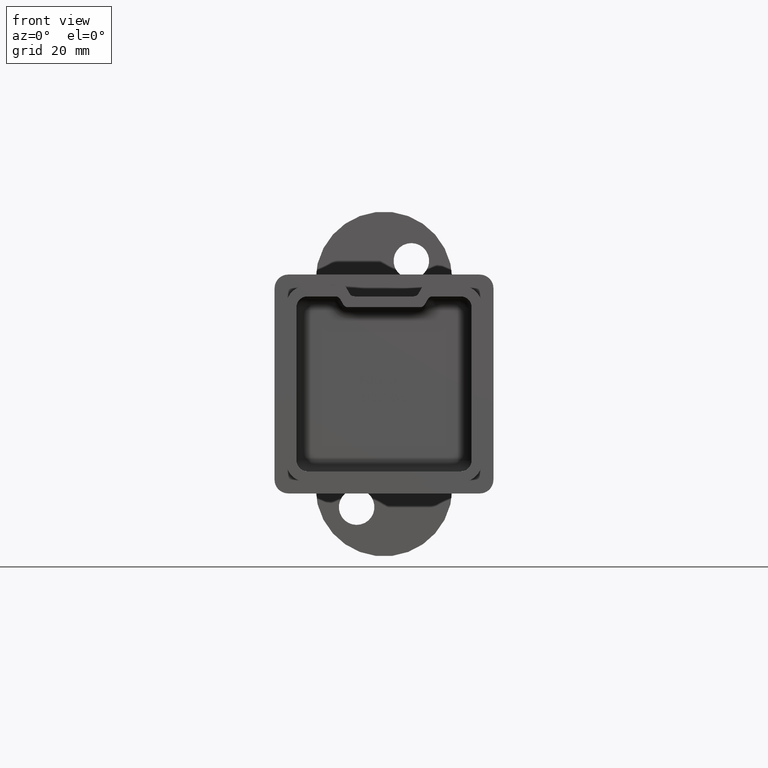
[diagram: clean part render]
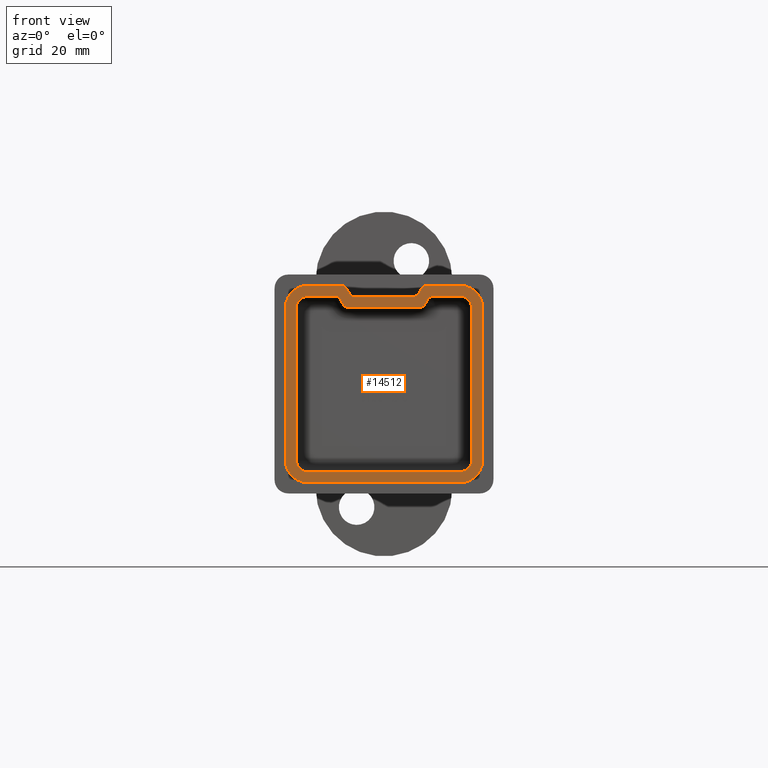
[diagram: same view with one face highlighted and labeled with its STEP entity id]
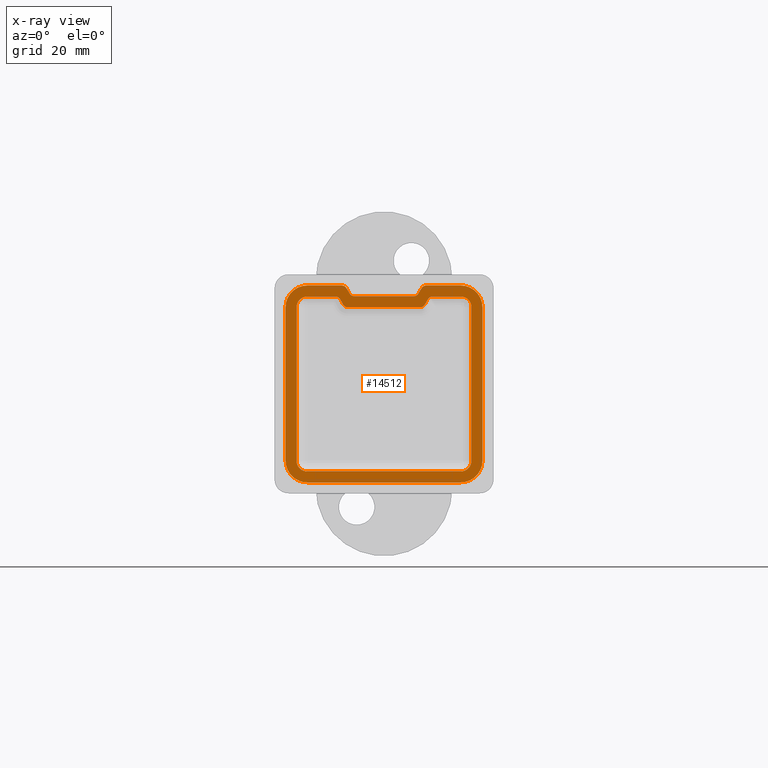
[diagram: x-ray of the same camera — body ghosted, the highlighted face saturated]
A machine part, front view. The second image highlights one B-rep face of the part: STEP entity #14512.
The next image is the same camera in x-ray: the body ghosted, the highlighted face saturated — about 0% of this face is hidden behind the body in this view.
In plain terms, the highlighted planar face has unit normal (0, -1, 0).
Its self-contained STEP definition (entity closure, byte-faithful):
#1 = LINE ( 'NONE', #11690, #9505 ) ;
#53 = DIRECTION ( 'NONE',  ( 0.000000000000000000, -1.000000000000000000, 0.000000000000000000 ) ) ;
#157 = DIRECTION ( 'NONE',  ( 0.000000000000000000, 0.000000000000000000, -1.000000000000000000 ) ) ;
#218 = DIRECTION ( 'NONE',  ( -0.000000000000000000, 1.000000000000000000, -0.000000000000000000 ) ) ;
#318 = DIRECTION ( 'NONE',  ( 0.000000000000000000, -1.000000000000000000, 0.000000000000000000 ) ) ;
#411 = LINE ( 'NONE', #4469, #12918 ) ;
#533 = VERTEX_POINT ( 'NONE', #12432 ) ;
#561 = ORIENTED_EDGE ( 'NONE', *, *, #6481, .T. ) ;
#753 = CARTESIAN_POINT ( 'NONE',  ( 13.99999999999999289, -30.00000000000000000, 16.00000000000000000 ) ) ;
#860 = EDGE_CURVE ( 'NONE', #11211, #6124, #6607, .T. ) ;
#867 = ORIENTED_EDGE ( 'NONE', *, *, #5024, .T. ) ;
#874 = CARTESIAN_POINT ( 'NONE',  ( 17.99999999999999645, -30.00000000000000000, 14.00000000000000178 ) ) ;
#896 = VERTEX_POINT ( 'NONE', #4999 ) ;
#965 = LINE ( 'NONE', #10046, #8767 ) ;
#966 = ORIENTED_EDGE ( 'NONE', *, *, #6809, .F. ) ;
#978 = DIRECTION ( 'NONE',  ( -0.000000000000000000, 1.000000000000000000, -0.000000000000000000 ) ) ;
#1004 = CARTESIAN_POINT ( 'NONE',  ( -8.886751345948120218, -30.00000000000000000, 15.99999999999999289 ) ) ;
#1165 = CARTESIAN_POINT ( 'NONE',  ( 17.99999999999999645, -30.00000000000000000, -13.99999999999998401 ) ) ;
#1185 = DIRECTION ( 'NONE',  ( -0.000000000000000000, 1.000000000000000000, -0.000000000000000000 ) ) ;
#1228 = CARTESIAN_POINT ( 'NONE',  ( 6.866025403784421499, -30.00000000000000000, 17.49999999999999289 ) ) ;
#1238 = LINE ( 'NONE', #8439, #11112 ) ;
#1295 = CARTESIAN_POINT ( 'NONE',  ( -16.00000000000000000, -30.00000000000000000, -1.734723475976807489E-15 ) ) ;
#1332 = VERTEX_POINT ( 'NONE', #6960 ) ;
#1475 = CARTESIAN_POINT ( 'NONE',  ( 13.99999999999999289, -30.00000000000000000, -13.99999999999999467 ) ) ;
#1579 = CIRCLE ( 'NONE', #6874, 2.000000000000001776 ) ;
#1602 = EDGE_LOOP ( 'NONE', ( #1619, #867, #15239, #2544, #2996, #15289, #5046, #10586, #6833, #14283, #10157, #11278, #6517, #561, #11322, #14727 ) ) ;
#1615 = CARTESIAN_POINT ( 'NONE',  ( 8.886751345948125547, -30.00000000000000000, 16.00000000000000000 ) ) ;
#1619 = ORIENTED_EDGE ( 'NONE', *, *, #8151, .F. ) ;
#1811 = DIRECTION ( 'NONE',  ( -1.000000000000000000, 0.000000000000000000, 0.000000000000000000 ) ) ;
#1818 = EDGE_CURVE ( 'NONE', #2696, #1332, #6608, .T. ) ;
#1867 = CARTESIAN_POINT ( 'NONE',  ( 13.99999999999999112, -30.00000000000000000, 18.00000000000000355 ) ) ;
#1897 = ORIENTED_EDGE ( 'NONE', *, *, #7211, .F. ) ;
#1961 = EDGE_CURVE ( 'NONE', #10136, #3402, #3548, .T. ) ;
#2008 = DIRECTION ( 'NONE',  ( 0.000000000000000000, 0.000000000000000000, -1.000000000000000000 ) ) ;
#2187 = PLANE ( 'NONE',  #5766 ) ;
#2238 = DIRECTION ( 'NONE',  ( 0.000000000000000000, 0.000000000000000000, -1.000000000000000000 ) ) ;
#2321 = VERTEX_POINT ( 'NONE', #874 ) ;
#2343 = AXIS2_PLACEMENT_3D ( 'NONE', #3380, #8073, #2008 ) ;
#2348 = DIRECTION ( 'NONE',  ( -1.000000000000000000, -0.000000000000000000, -1.927470528863119049E-16 ) ) ;
#2506 = VECTOR ( 'NONE', #12104, 1000.000000000000000 ) ;
#2544 = ORIENTED_EDGE ( 'NONE', *, *, #9512, .T. ) ;
#2581 = CARTESIAN_POINT ( 'NONE',  ( -14.00000000000000178, -30.00000000000000000, -14.00000000000000178 ) ) ;
#2663 = CARTESIAN_POINT ( 'NONE',  ( 15.99999999999999289, -30.00000000000000000, 14.00000000000000000 ) ) ;
#2696 = VERTEX_POINT ( 'NONE', #13261 ) ;
#2816 = ORIENTED_EDGE ( 'NONE', *, *, #9931, .F. ) ;
#2853 = VERTEX_POINT ( 'NONE', #7755 ) ;
#2905 = CARTESIAN_POINT ( 'NONE',  ( -5.422649730810372048, -30.00000000000000000, 15.99999999999999289 ) ) ;
#2989 = CIRCLE ( 'NONE', #12610, 2.000000000000000000 ) ;
#2996 = ORIENTED_EDGE ( 'NONE', *, *, #10638, .T. ) ;
#3087 = CARTESIAN_POINT ( 'NONE',  ( -16.00000000000000000, -30.00000000000000000, 13.99999999999999289 ) ) ;
#3207 = ORIENTED_EDGE ( 'NONE', *, *, #14833, .T. ) ;
#3241 = CARTESIAN_POINT ( 'NONE',  ( -14.00000000000000178, -30.00000000000000000, -18.00000000000000355 ) ) ;
#3262 = CARTESIAN_POINT ( 'NONE',  ( 0.000000000000000000, -30.00000000000000000, 15.99999999999999289 ) ) ;
#3349 = EDGE_CURVE ( 'NONE', #4758, #14671, #2989, .T. ) ;
#3380 = CARTESIAN_POINT ( 'NONE',  ( -5.422649730810372048, -30.00000000000000000, 16.99999999999999289 ) ) ;
#3402 = VERTEX_POINT ( 'NONE', #12300 ) ;
#3403 = LINE ( 'NONE', #4636, #13544 ) ;
#3548 = CIRCLE ( 'NONE', #2343, 1.000000000000000888 ) ;
#3627 = DIRECTION ( 'NONE',  ( 0.000000000000000000, -1.000000000000000000, 0.000000000000000000 ) ) ;
#3653 = LINE ( 'NONE', #11769, #5005 ) ;
#3663 = DIRECTION ( 'NONE',  ( 0.000000000000000000, -1.000000000000000000, 0.000000000000000000 ) ) ;
#3791 = VERTEX_POINT ( 'NONE', #15059 ) ;
#3866 = DIRECTION ( 'NONE',  ( 0.000000000000000000, 0.000000000000000000, -1.000000000000000000 ) ) ;
#3888 = DIRECTION ( 'NONE',  ( 1.734723475976805517E-15, 0.000000000000000000, -1.000000000000000000 ) ) ;
#3915 = DIRECTION ( 'NONE',  ( 0.000000000000000000, 0.000000000000000000, -1.000000000000000000 ) ) ;
#4039 = EDGE_CURVE ( 'NONE', #7659, #533, #14348, .T. ) ;
#4190 = ORIENTED_EDGE ( 'NONE', *, *, #12894, .T. ) ;
#4301 = VERTEX_POINT ( 'NONE', #5781 ) ;
#4410 = VERTEX_POINT ( 'NONE', #5927 ) ;
#4460 = CIRCLE ( 'NONE', #12320, 4.000000000000000000 ) ;
#4468 = CARTESIAN_POINT ( 'NONE',  ( -6.577350269189625287, -30.00000000000000000, 13.99999999999998934 ) ) ;
#4469 = CARTESIAN_POINT ( 'NONE',  ( -18.00000000000000355, -30.00000000000000000, 17.99999999999999645 ) ) ;
#4480 = DIRECTION ( 'NONE',  ( 0.000000000000000000, -1.000000000000000000, 0.000000000000000000 ) ) ;
#4567 = EDGE_LOOP ( 'NONE', ( #2816, #14657, #966, #5464, #12903, #6265, #10973, #4910, #6391, #3207, #1897, #7613, #14182, #4190, #5632, #12950 ) ) ;
#4613 = CIRCLE ( 'NONE', #5457, 4.000000000000000000 ) ;
#4635 = CARTESIAN_POINT ( 'NONE',  ( -6.000000000000000000, -30.00000000000000000, 15.99999999999999289 ) ) ;
#4636 = CARTESIAN_POINT ( 'NONE',  ( 0.6961524227065510884, -30.00000000000000000, 0.4019237886466321408 ) ) ;
#4655 = CARTESIAN_POINT ( 'NONE',  ( 0.000000000000000000, -30.00000000000000000, 0.000000000000000000 ) ) ;
#4656 = CIRCLE ( 'NONE', #6363, 1.999999999999998224 ) ;
#4706 = VERTEX_POINT ( 'NONE', #13972 ) ;
#4758 = VERTEX_POINT ( 'NONE', #753 ) ;
#4809 = DIRECTION ( 'NONE',  ( 0.000000000000000000, -0.000000000000000000, -1.000000000000000000 ) ) ;
#4846 = LINE ( 'NONE', #9527, #9022 ) ;
#4910 = ORIENTED_EDGE ( 'NONE', *, *, #14776, .T. ) ;
#4999 = CARTESIAN_POINT ( 'NONE',  ( -13.99999999999999822, -30.00000000000000000, -15.99999999999999645 ) ) ;
#5005 = VECTOR ( 'NONE', #5588, 1000.000000000000000 ) ;
#5024 = EDGE_CURVE ( 'NONE', #4706, #3791, #13759, .T. ) ;
#5038 = FACE_OUTER_BOUND ( 'NONE', #1602, .T. ) ;
#5046 = ORIENTED_EDGE ( 'NONE', *, *, #4039, .T. ) ;
#5208 = VECTOR ( 'NONE', #1811, 1000.000000000000000 ) ;
#5209 = VERTEX_POINT ( 'NONE', #1004 ) ;
#5366 = DIRECTION ( 'NONE',  ( 0.000000000000000000, -1.000000000000000000, 0.000000000000000000 ) ) ;
#5457 = AXIS2_PLACEMENT_3D ( 'NONE', #12385, #318, #14946 ) ;
#5464 = ORIENTED_EDGE ( 'NONE', *, *, #14680, .T. ) ;
#5493 = DIRECTION ( 'NONE',  ( -1.000000000000000000, 0.000000000000000000, -2.424592708907103745E-16 ) ) ;
#5582 = EDGE_CURVE ( 'NONE', #12352, #2321, #12596, .T. ) ;
#5588 = DIRECTION ( 'NONE',  ( 0.000000000000000000, 0.000000000000000000, 1.000000000000000000 ) ) ;
#5632 = ORIENTED_EDGE ( 'NONE', *, *, #11603, .F. ) ;
#5738 = AXIS2_PLACEMENT_3D ( 'NONE', #13273, #12141, #2238 ) ;
#5766 = AXIS2_PLACEMENT_3D ( 'NONE', #4655, #53, #4809 ) ;
#5781 = CARTESIAN_POINT ( 'NONE',  ( -16.00000000000000000, -30.00000000000000000, -13.99999999999999822 ) ) ;
#5792 = VERTEX_POINT ( 'NONE', #13457 ) ;
#5927 = CARTESIAN_POINT ( 'NONE',  ( -18.00000000000000355, -30.00000000000000000, -14.00000000000000533 ) ) ;
#5951 = LINE ( 'NONE', #1295, #2506 ) ;
#6050 = DIRECTION ( 'NONE',  ( 0.000000000000000000, 0.000000000000000000, -1.000000000000000000 ) ) ;
#6124 = VERTEX_POINT ( 'NONE', #4468 ) ;
#6241 = CARTESIAN_POINT ( 'NONE',  ( -18.00000000000000355, -30.00000000000000000, 13.99999999999999645 ) ) ;
#6265 = ORIENTED_EDGE ( 'NONE', *, *, #3349, .T. ) ;
#6333 = AXIS2_PLACEMENT_3D ( 'NONE', #9433, #978, #10722 ) ;
#6363 = AXIS2_PLACEMENT_3D ( 'NONE', #1475, #218, #157 ) ;
#6391 = ORIENTED_EDGE ( 'NONE', *, *, #12349, .F. ) ;
#6481 = EDGE_CURVE ( 'NONE', #2853, #14365, #6710, .T. ) ;
#6517 = ORIENTED_EDGE ( 'NONE', *, *, #6552, .F. ) ;
#6552 = EDGE_CURVE ( 'NONE', #2853, #7413, #8997, .T. ) ;
#6573 = AXIS2_PLACEMENT_3D ( 'NONE', #7588, #9830, #3888 ) ;
#6596 = CARTESIAN_POINT ( 'NONE',  ( -13.99999999999999822, -30.00000000000000000, -13.99999999999999822 ) ) ;
#6607 = CIRCLE ( 'NONE', #9647, 0.9999999999999991118 ) ;
#6608 = CIRCLE ( 'NONE', #11695, 0.9999999999999991118 ) ;
#6702 = DIRECTION ( 'NONE',  ( 0.000000000000000000, 0.000000000000000000, -1.000000000000000000 ) ) ;
#6710 = CIRCLE ( 'NONE', #8343, 1.000000000000000888 ) ;
#6809 = EDGE_CURVE ( 'NONE', #10538, #1332, #11829, .T. ) ;
#6833 = ORIENTED_EDGE ( 'NONE', *, *, #5582, .T. ) ;
#6837 = CARTESIAN_POINT ( 'NONE',  ( 17.99999999999999645, -30.00000000000000000, 18.00000000000000355 ) ) ;
#6874 = AXIS2_PLACEMENT_3D ( 'NONE', #6596, #7922, #12779 ) ;
#6960 = CARTESIAN_POINT ( 'NONE',  ( 7.443375672974068991, -30.00000000000000000, 14.50000000000000178 ) ) ;
#6997 = EDGE_CURVE ( 'NONE', #14500, #14671, #3653, .T. ) ;
#7211 = EDGE_CURVE ( 'NONE', #7572, #4301, #5951, .T. ) ;
#7351 = CARTESIAN_POINT ( 'NONE',  ( -18.00000000000000355, -30.00000000000000000, -18.00000000000000355 ) ) ;
#7413 = VERTEX_POINT ( 'NONE', #1228 ) ;
#7572 = VERTEX_POINT ( 'NONE', #3087 ) ;
#7588 = CARTESIAN_POINT ( 'NONE',  ( 8.886751345948125547, -30.00000000000000000, 15.00000000000000000 ) ) ;
#7613 = ORIENTED_EDGE ( 'NONE', *, *, #14545, .T. ) ;
#7658 = CARTESIAN_POINT ( 'NONE',  ( -7.443375672974069879, -30.00000000000000000, 14.50000000000000178 ) ) ;
#7659 = VERTEX_POINT ( 'NONE', #3241 ) ;
#7678 = LINE ( 'NONE', #3262, #11664 ) ;
#7755 = CARTESIAN_POINT ( 'NONE',  ( 6.288675134594811311, -30.00000000000000000, 16.50000000000000000 ) ) ;
#7807 = VERTEX_POINT ( 'NONE', #1615 ) ;
#7812 = CARTESIAN_POINT ( 'NONE',  ( -0.6961524227065588599, -30.00000000000000000, 0.4019237886466372478 ) ) ;
#7922 = DIRECTION ( 'NONE',  ( -0.000000000000000000, 1.000000000000000000, -0.000000000000000000 ) ) ;
#8073 = DIRECTION ( 'NONE',  ( -0.000000000000000000, 1.000000000000000000, -0.000000000000000000 ) ) ;
#8147 = CARTESIAN_POINT ( 'NONE',  ( 15.99999999999999289, -30.00000000000000000, -13.99999999999999467 ) ) ;
#8151 = EDGE_CURVE ( 'NONE', #4706, #3402, #965, .T. ) ;
#8239 = VECTOR ( 'NONE', #9296, 1000.000000000000000 ) ;
#8343 = AXIS2_PLACEMENT_3D ( 'NONE', #8920, #14893, #10232 ) ;
#8439 = CARTESIAN_POINT ( 'NONE',  ( 1.734723475976807489E-15, -30.00000000000000000, -15.99999999999999645 ) ) ;
#8450 = DIRECTION ( 'NONE',  ( 0.000000000000000000, 0.000000000000000000, -1.000000000000000000 ) ) ;
#8554 = CARTESIAN_POINT ( 'NONE',  ( -14.00000000000000178, -30.00000000000000000, 13.99999999999999289 ) ) ;
#8584 = CARTESIAN_POINT ( 'NONE',  ( -18.00000000000000355, -30.00000000000000000, 17.99999999999999645 ) ) ;
#8630 = CIRCLE ( 'NONE', #6573, 1.000000000000000888 ) ;
#8711 = DIRECTION ( 'NONE',  ( 0.000000000000000000, 0.000000000000000000, -1.000000000000000000 ) ) ;
#8767 = VECTOR ( 'NONE', #13566, 1000.000000000000000 ) ;
#8837 = CIRCLE ( 'NONE', #5738, 4.000000000000000000 ) ;
#8920 = CARTESIAN_POINT ( 'NONE',  ( 5.422649730810368496, -30.00000000000000000, 16.99999999999999289 ) ) ;
#8997 = LINE ( 'NONE', #13841, #14670 ) ;
#9022 = VECTOR ( 'NONE', #2348, 1000.000000000000000 ) ;
#9083 = CARTESIAN_POINT ( 'NONE',  ( 6.577350269189627952, -30.00000000000000000, 14.99999999999999467 ) ) ;
#9236 = VERTEX_POINT ( 'NONE', #12517 ) ;
#9296 = DIRECTION ( 'NONE',  ( -0.000000000000000000, -0.000000000000000000, 1.000000000000000000 ) ) ;
#9433 = CARTESIAN_POINT ( 'NONE',  ( -8.886751345948120218, -30.00000000000000000, 14.99999999999999289 ) ) ;
#9505 = VECTOR ( 'NONE', #5493, 1000.000000000000000 ) ;
#9512 = EDGE_CURVE ( 'NONE', #13320, #10999, #4613, .T. ) ;
#9527 = CARTESIAN_POINT ( 'NONE',  ( -18.00000000000000355, -30.00000000000000000, 17.99999999999999645 ) ) ;
#9544 = DIRECTION ( 'NONE',  ( -0.4999999999999951150, 0.000000000000000000, 0.8660254037844414832 ) ) ;
#9599 = CARTESIAN_POINT ( 'NONE',  ( -8.020725942163679179, -30.00000000000000000, 15.49999999999998757 ) ) ;
#9617 = DIRECTION ( 'NONE',  ( -0.000000000000000000, 1.000000000000000000, -0.000000000000000000 ) ) ;
#9647 = AXIS2_PLACEMENT_3D ( 'NONE', #9752, #10944, #3866 ) ;
#9752 = CARTESIAN_POINT ( 'NONE',  ( -6.577350269189625287, -30.00000000000000000, 14.99999999999999112 ) ) ;
#9799 = VECTOR ( 'NONE', #11980, 1000.000000000000000 ) ;
#9830 = DIRECTION ( 'NONE',  ( -0.000000000000000000, 1.000000000000000000, -0.000000000000000000 ) ) ;
#9923 = CARTESIAN_POINT ( 'NONE',  ( -7.732050807568867867, -30.00000000000000000, 16.99999999999999645 ) ) ;
#9931 = EDGE_CURVE ( 'NONE', #2696, #6124, #1, .T. ) ;
#10033 = CARTESIAN_POINT ( 'NONE',  ( 5.422649730810368496, -30.00000000000000000, 15.99999999999999289 ) ) ;
#10046 = CARTESIAN_POINT ( 'NONE',  ( -6.000000000000000000, -30.00000000000000000, 15.99999999999999289 ) ) ;
#10136 = VERTEX_POINT ( 'NONE', #2905 ) ;
#10157 = ORIENTED_EDGE ( 'NONE', *, *, #14030, .T. ) ;
#10161 = EDGE_CURVE ( 'NONE', #3791, #13320, #411, .T. ) ;
#10182 = DIRECTION ( 'NONE',  ( 0.000000000000000000, 0.000000000000000000, -1.000000000000000000 ) ) ;
#10213 = EDGE_CURVE ( 'NONE', #4410, #7659, #11768, .T. ) ;
#10232 = DIRECTION ( 'NONE',  ( 0.000000000000000000, 0.000000000000000000, -1.000000000000000000 ) ) ;
#10448 = DIRECTION ( 'NONE',  ( -0.4999999999999956146, 0.000000000000000000, -0.8660254037844411501 ) ) ;
#10482 = DIRECTION ( 'NONE',  ( -1.000000000000000000, 0.000000000000000000, 0.000000000000000000 ) ) ;
#10537 = LINE ( 'NONE', #4635, #13380 ) ;
#10538 = VERTEX_POINT ( 'NONE', #15122 ) ;
#10586 = ORIENTED_EDGE ( 'NONE', *, *, #14947, .T. ) ;
#10638 = EDGE_CURVE ( 'NONE', #10999, #4410, #13862, .T. ) ;
#10641 = VERTEX_POINT ( 'NONE', #9599 ) ;
#10722 = DIRECTION ( 'NONE',  ( -1.734723475976805517E-15, 0.000000000000000000, -1.000000000000000000 ) ) ;
#10866 = CARTESIAN_POINT ( 'NONE',  ( 7.732050807568863426, -30.00000000000000000, 16.99999999999999645 ) ) ;
#10915 = CARTESIAN_POINT ( 'NONE',  ( 13.99999999999999289, -30.00000000000000000, -15.99999999999999645 ) ) ;
#10944 = DIRECTION ( 'NONE',  ( 0.000000000000000000, -1.000000000000000000, 0.000000000000000000 ) ) ;
#10973 = ORIENTED_EDGE ( 'NONE', *, *, #6997, .F. ) ;
#10999 = VERTEX_POINT ( 'NONE', #6241 ) ;
#11112 = VECTOR ( 'NONE', #12074, 1000.000000000000000 ) ;
#11163 = AXIS2_PLACEMENT_3D ( 'NONE', #2581, #14832, #3915 ) ;
#11211 = VERTEX_POINT ( 'NONE', #7658 ) ;
#11278 = ORIENTED_EDGE ( 'NONE', *, *, #14093, .T. ) ;
#11322 = ORIENTED_EDGE ( 'NONE', *, *, #13540, .F. ) ;
#11346 = EDGE_CURVE ( 'NONE', #4758, #7807, #13936, .T. ) ;
#11363 = VERTEX_POINT ( 'NONE', #1867 ) ;
#11603 = EDGE_CURVE ( 'NONE', #11211, #10641, #3403, .T. ) ;
#11664 = VECTOR ( 'NONE', #10482, 1000.000000000000000 ) ;
#11690 = CARTESIAN_POINT ( 'NONE',  ( -3.394429792469943469E-15, -30.00000000000000000, 13.99999999999999112 ) ) ;
#11695 = AXIS2_PLACEMENT_3D ( 'NONE', #9083, #5366, #10182 ) ;
#11768 = CIRCLE ( 'NONE', #11163, 4.000000000000000000 ) ;
#11769 = CARTESIAN_POINT ( 'NONE',  ( 15.99999999999999289, -30.00000000000000000, 0.000000000000000000 ) ) ;
#11775 = CARTESIAN_POINT ( 'NONE',  ( 13.99999999999999467, -30.00000000000000000, -13.99999999999998401 ) ) ;
#11829 = LINE ( 'NONE', #7812, #14298 ) ;
#11980 = DIRECTION ( 'NONE',  ( 1.000000000000000000, 0.000000000000000000, 1.927470528863119049E-16 ) ) ;
#12074 = DIRECTION ( 'NONE',  ( 1.000000000000000000, 0.000000000000000000, 1.084202172485504927E-16 ) ) ;
#12090 = DIRECTION ( 'NONE',  ( 0.000000000000000000, 0.000000000000000000, -1.000000000000000000 ) ) ;
#12104 = DIRECTION ( 'NONE',  ( 1.084202172485504681E-16, 0.000000000000000000, -1.000000000000000000 ) ) ;
#12141 = DIRECTION ( 'NONE',  ( 0.000000000000000000, -1.000000000000000000, 0.000000000000000000 ) ) ;
#12300 = CARTESIAN_POINT ( 'NONE',  ( -6.288675134594813088, -30.00000000000000000, 16.50000000000000000 ) ) ;
#12320 = AXIS2_PLACEMENT_3D ( 'NONE', #11775, #4480, #6702 ) ;
#12349 = EDGE_CURVE ( 'NONE', #896, #15739, #1238, .T. ) ;
#12352 = VERTEX_POINT ( 'NONE', #1165 ) ;
#12385 = CARTESIAN_POINT ( 'NONE',  ( -14.00000000000000178, -30.00000000000000000, 13.99999999999999645 ) ) ;
#12409 = CIRCLE ( 'NONE', #14364, 1.000000000000000888 ) ;
#12432 = CARTESIAN_POINT ( 'NONE',  ( 13.99999999999999822, -30.00000000000000000, -17.99999999999999645 ) ) ;
#12505 = CARTESIAN_POINT ( 'NONE',  ( -14.00000000000000178, -30.00000000000000000, 17.99999999999999645 ) ) ;
#12517 = CARTESIAN_POINT ( 'NONE',  ( 7.732050807568863426, -30.00000000000000000, 18.00000000000000000 ) ) ;
#12596 = LINE ( 'NONE', #6837, #8239 ) ;
#12610 = AXIS2_PLACEMENT_3D ( 'NONE', #14504, #1185, #13233 ) ;
#12779 = DIRECTION ( 'NONE',  ( 0.000000000000000000, 0.000000000000000000, -1.000000000000000000 ) ) ;
#12894 = EDGE_CURVE ( 'NONE', #5209, #10641, #13785, .T. ) ;
#12903 = ORIENTED_EDGE ( 'NONE', *, *, #11346, .F. ) ;
#12918 = VECTOR ( 'NONE', #14159, 1000.000000000000000 ) ;
#12950 = ORIENTED_EDGE ( 'NONE', *, *, #860, .T. ) ;
#13233 = DIRECTION ( 'NONE',  ( 0.000000000000000000, 0.000000000000000000, -1.000000000000000000 ) ) ;
#13261 = CARTESIAN_POINT ( 'NONE',  ( 6.577350269189627952, -30.00000000000000000, 13.99999999999999289 ) ) ;
#13273 = CARTESIAN_POINT ( 'NONE',  ( 13.99999999999999112, -30.00000000000000000, 14.00000000000000178 ) ) ;
#13284 = VECTOR ( 'NONE', #6050, 1000.000000000000000 ) ;
#13320 = VERTEX_POINT ( 'NONE', #12505 ) ;
#13380 = VECTOR ( 'NONE', #14418, 1000.000000000000000 ) ;
#13457 = CARTESIAN_POINT ( 'NONE',  ( -14.00000000000000178, -30.00000000000000000, 15.99999999999999289 ) ) ;
#13467 = AXIS2_PLACEMENT_3D ( 'NONE', #8554, #9617, #8450 ) ;
#13540 = EDGE_CURVE ( 'NONE', #10136, #14365, #10537, .T. ) ;
#13544 = VECTOR ( 'NONE', #9544, 1000.000000000000114 ) ;
#13564 = CIRCLE ( 'NONE', #13467, 2.000000000000000000 ) ;
#13566 = DIRECTION ( 'NONE',  ( 0.4999999999999952816, -0.000000000000000000, -0.8660254037844413721 ) ) ;
#13759 = CIRCLE ( 'NONE', #15174, 1.000000000000000888 ) ;
#13785 = CIRCLE ( 'NONE', #6333, 1.000000000000000888 ) ;
#13841 = CARTESIAN_POINT ( 'NONE',  ( 7.154700538379232810, -30.00000000000000000, 18.00000000000000000 ) ) ;
#13862 = LINE ( 'NONE', #8584, #13284 ) ;
#13936 = LINE ( 'NONE', #15275, #5208 ) ;
#13953 = EDGE_CURVE ( 'NONE', #5209, #5792, #7678, .T. ) ;
#13972 = CARTESIAN_POINT ( 'NONE',  ( -6.866025403784426828, -30.00000000000000000, 17.49999999999999289 ) ) ;
#14030 = EDGE_CURVE ( 'NONE', #11363, #9236, #4846, .T. ) ;
#14050 = EDGE_CURVE ( 'NONE', #2321, #11363, #8837, .T. ) ;
#14051 = DIRECTION ( 'NONE',  ( 0.4999999999999928391, -0.000000000000000000, 0.8660254037844428154 ) ) ;
#14093 = EDGE_CURVE ( 'NONE', #9236, #7413, #12409, .T. ) ;
#14159 = DIRECTION ( 'NONE',  ( -1.000000000000000000, -0.000000000000000000, -1.927470528863119049E-16 ) ) ;
#14182 = ORIENTED_EDGE ( 'NONE', *, *, #13953, .F. ) ;
#14283 = ORIENTED_EDGE ( 'NONE', *, *, #14050, .T. ) ;
#14298 = VECTOR ( 'NONE', #10448, 1000.000000000000114 ) ;
#14348 = LINE ( 'NONE', #7351, #9799 ) ;
#14364 = AXIS2_PLACEMENT_3D ( 'NONE', #10866, #3627, #12090 ) ;
#14365 = VERTEX_POINT ( 'NONE', #10033 ) ;
#14418 = DIRECTION ( 'NONE',  ( 1.000000000000000000, 0.000000000000000000, 0.000000000000000000 ) ) ;
#14500 = VERTEX_POINT ( 'NONE', #8147 ) ;
#14504 = CARTESIAN_POINT ( 'NONE',  ( 13.99999999999999289, -30.00000000000000000, 14.00000000000000000 ) ) ;
#14512 = ADVANCED_FACE ( 'NONE', ( #14872, #5038 ), #2187, .T. ) ;
#14545 = EDGE_CURVE ( 'NONE', #7572, #5792, #13564, .T. ) ;
#14657 = ORIENTED_EDGE ( 'NONE', *, *, #1818, .T. ) ;
#14670 = VECTOR ( 'NONE', #14051, 1000.000000000000000 ) ;
#14671 = VERTEX_POINT ( 'NONE', #2663 ) ;
#14680 = EDGE_CURVE ( 'NONE', #10538, #7807, #8630, .T. ) ;
#14727 = ORIENTED_EDGE ( 'NONE', *, *, #1961, .T. ) ;
#14776 = EDGE_CURVE ( 'NONE', #14500, #15739, #4656, .T. ) ;
#14832 = DIRECTION ( 'NONE',  ( 0.000000000000000000, -1.000000000000000000, 0.000000000000000000 ) ) ;
#14833 = EDGE_CURVE ( 'NONE', #896, #4301, #1579, .T. ) ;
#14872 = FACE_BOUND ( 'NONE', #4567, .T. ) ;
#14893 = DIRECTION ( 'NONE',  ( -0.000000000000000000, 1.000000000000000000, -0.000000000000000000 ) ) ;
#14946 = DIRECTION ( 'NONE',  ( 0.000000000000000000, 0.000000000000000000, -1.000000000000000000 ) ) ;
#14947 = EDGE_CURVE ( 'NONE', #533, #12352, #4460, .T. ) ;
#15059 = CARTESIAN_POINT ( 'NONE',  ( -7.732050807568866979, -30.00000000000000000, 18.00000000000000000 ) ) ;
#15122 = CARTESIAN_POINT ( 'NONE',  ( 8.020725942163684508, -30.00000000000000000, 15.49999999999999645 ) ) ;
#15174 = AXIS2_PLACEMENT_3D ( 'NONE', #9923, #3663, #8711 ) ;
#15239 = ORIENTED_EDGE ( 'NONE', *, *, #10161, .T. ) ;
#15275 = CARTESIAN_POINT ( 'NONE',  ( 0.000000000000000000, -30.00000000000000000, 16.00000000000000000 ) ) ;
#15289 = ORIENTED_EDGE ( 'NONE', *, *, #10213, .T. ) ;
#15739 = VERTEX_POINT ( 'NONE', #10915 ) ;